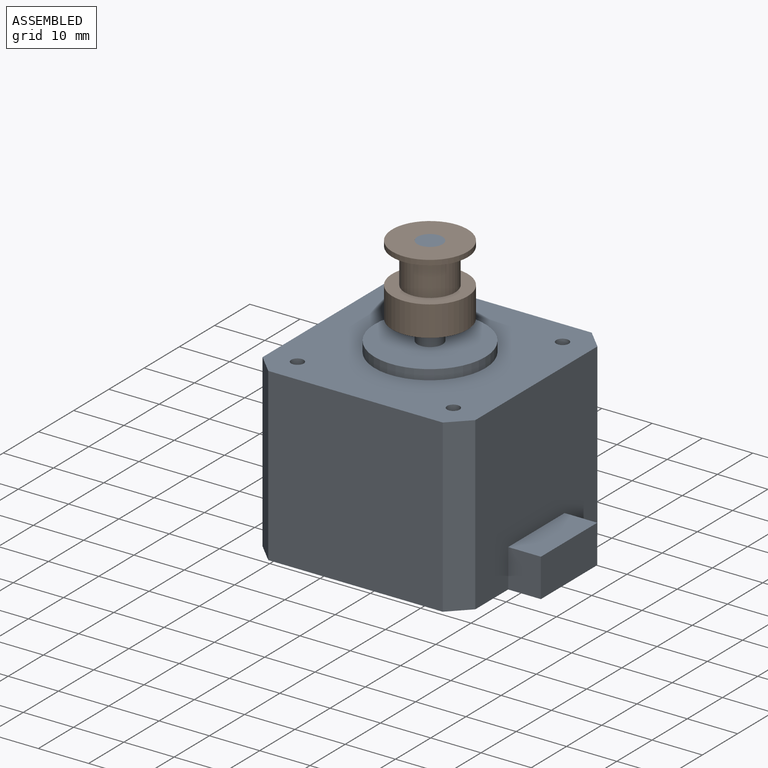
[diagram: assembled view]
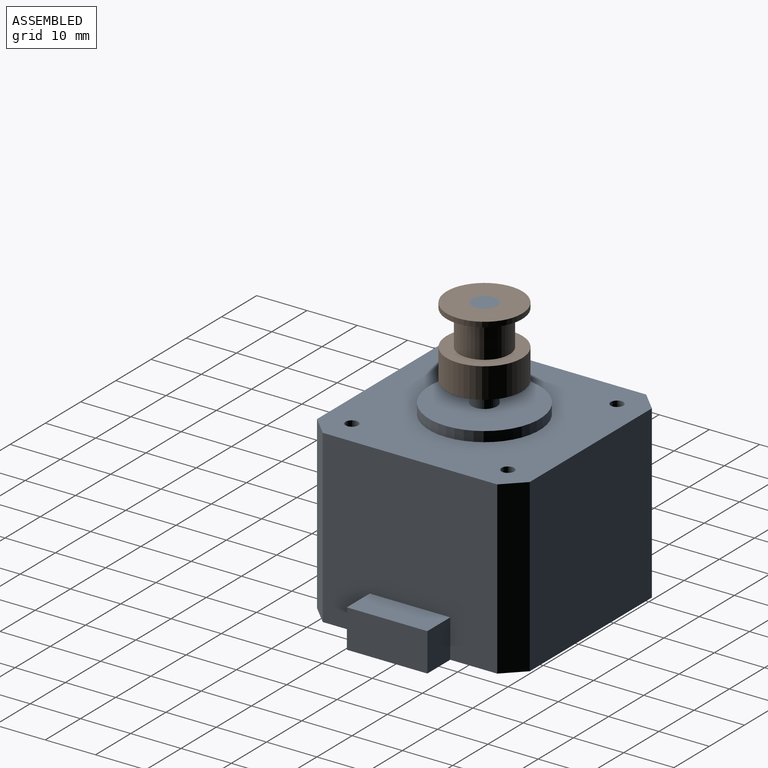
[diagram: assembled view, second angle]
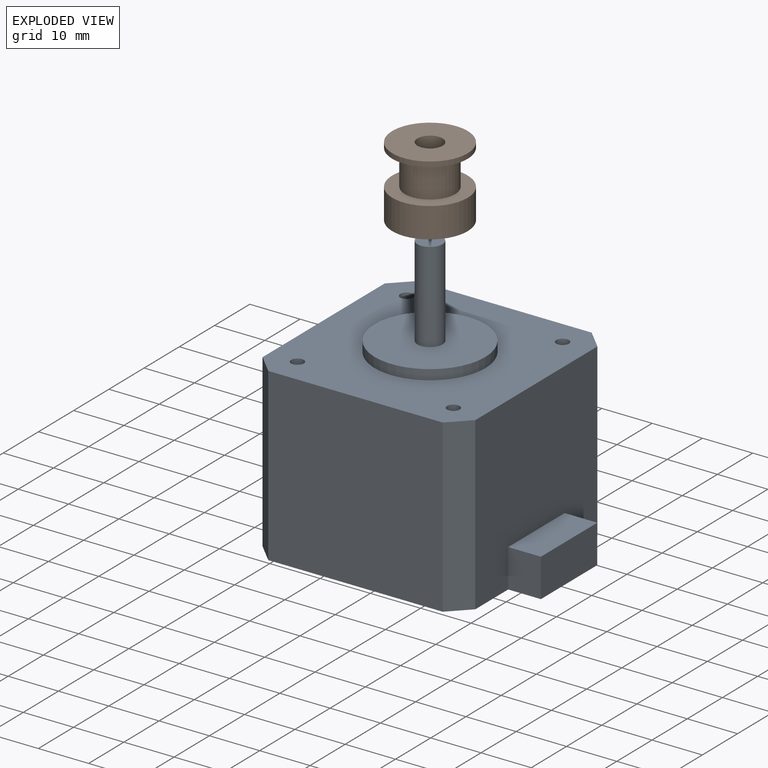
[diagram: exploded view]
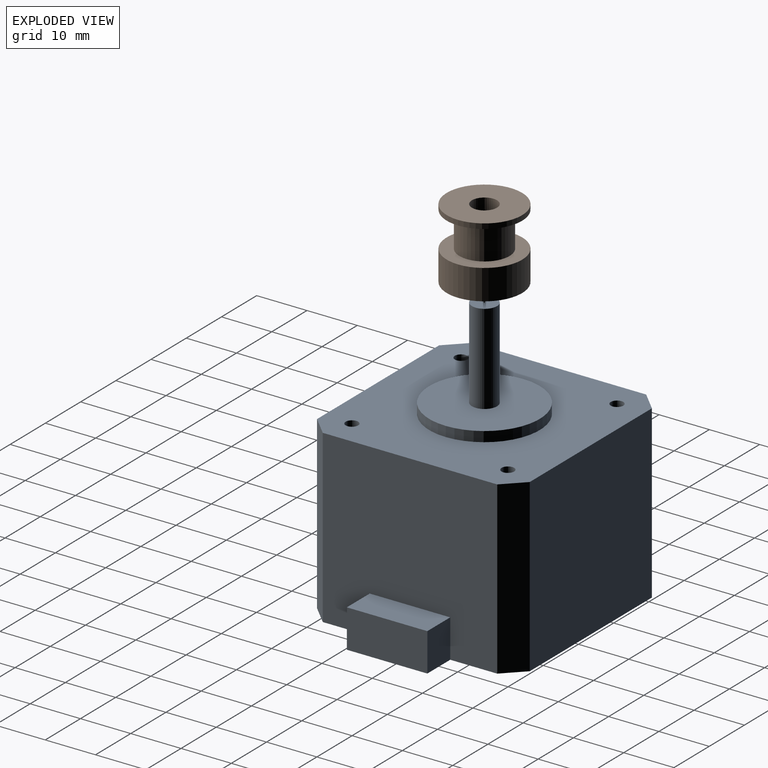
[diagram: exploded view, second angle]
ASSEMBLY  parts=2 mates=2
PART A: 26 faces, bbox 48.8x42.3x54 mm
  f0: plane 34.68x34mm, normal (1,0,0), area 1057.2mm2, adj f4,f5,f6,f7,f8,f24,f25
  f1: plane 34.68x34mm, normal (0,1,0), area 1179.1mm2, adj f4,f5,f22,f25
  f2: plane 34.68x34mm, normal (-1,0,0), area 1179.1mm2, adj f4,f5,f22,f23
  f3: plane 34.68x34mm, normal (0,-1,0), area 1179.1mm2, adj f4,f5,f23,f24
  f4: plane 42.3x42.3mm, normal (0,0,1), area 1360.5mm2, adj f0,f1,f2,f3,f10,f15,f17,f19
  f5: plane 48.8x42.3mm, normal (0,0,-1), area 1864.3mm2, adj f0,f1,f2,f3,f6,f8,f9,f22
  f6: plane 7.62x6.5mm, normal (0,1,0), area 49.5mm2, adj f0,f5,f7,f9
  f7: plane 16x6.5mm, normal (0,0,1), area 104mm2, adj f0,f6,f8,f9
  f8: plane 7.62x6.5mm, normal (0,-1,0), area 49.5mm2, adj f0,f5,f7,f9
  f9: plane 16x7.62mm, normal (1,0,0), area 121.9mm2, adj f5,f6,f7,f8
  f10: cylinder r=11mm len=22mm, axis (0,0,-1), area 138.2mm2, adj f4,f11
  f11: plane 22x22mm, normal (0,0,1), area 360.5mm2, adj f10,f12
  f12: cylinder r=2.5mm len=18mm, axis (0,0,-1), area 282.7mm2, adj f11,f13
  f13: plane 5x5mm, normal (0,0,1), area 19.6mm2, adj f12
  f14: cone r=1.25mm half-angle=59deg, axis (0,0,1), area 5.7mm2, adj f15
  f15: cylinder r=1.25mm len=7.62mm, axis (0,0,1), area 59.8mm2, adj f4,f14
  f16: cone r=1.25mm half-angle=59deg, axis (0,0,1), area 5.7mm2, adj f17
  f17: cylinder r=1.25mm len=7.62mm, axis (0,0,1), area 59.8mm2, adj f4,f16
  f18: cone r=1.25mm half-angle=59deg, axis (0,0,1), area 5.7mm2, adj f19
  f19: cylinder r=1.25mm len=7.62mm, axis (0,0,1), area 59.8mm2, adj f4,f18
  f20: cone r=1.25mm half-angle=59deg, axis (0,0,1), area 5.7mm2, adj f21
  f21: cylinder r=1.25mm len=7.62mm, axis (0,0,1), area 59.8mm2, adj f4,f20
  f22: plane 34x3.81mm, normal (-0.71,0.71,0), area 183.2mm2, adj f1,f2,f4,f5
  f23: plane 34x3.81mm, normal (-0.71,-0.71,0), area 183.2mm2, adj f2,f3,f4,f5
  f24: plane 34x3.81mm, normal (0.71,-0.71,0), area 183.2mm2, adj f0,f3,f4,f5
  f25: plane 34x3.81mm, normal (0.71,0.71,0), area 183.2mm2, adj f0,f1,f4,f5
PART B: 8 faces, bbox 14x15x15 mm
  f0: cylinder r=7.5mm len=15mm, axis (-1,0,0), area 47.1mm2, adj f1,f7
  f1: plane 15x15mm, normal (-1,0,0), area 98.2mm2, adj f0,f2
  f2: cylinder r=5mm len=10mm, axis (-1,0,0), area 219.9mm2, adj f1,f3
  f3: plane 15x15mm, normal (1,0,0), area 98.2mm2, adj f2,f4
  f4: cylinder r=7.5mm len=15mm, axis (-1,0,0), area 282.7mm2, adj f3,f5
  f5: plane 15x15mm, normal (-1,0,0), area 157.1mm2, adj f4,f6
  f6: cylinder r=2.5mm len=14mm, axis (-1,0,0), area 219.9mm2, adj f5,f7
  f7: plane 15x15mm, normal (1,0,0), area 157.1mm2, adj f0,f6
PLACE A t=(17.94,-0.12,-24.04)mm
PLACE B rot(axis=(0.71,0,0.71),180deg) t=(17.94,-0.12,29.96)mm
MATE cylindrical A.f10 <-> B.f0  axis (0,0,-1) through (17.94,-0.12,29.96)mm
MATE planar B.f0 <-> A.f10  axis (0,0,1) through (17.94,-0.12,29.96)mm
